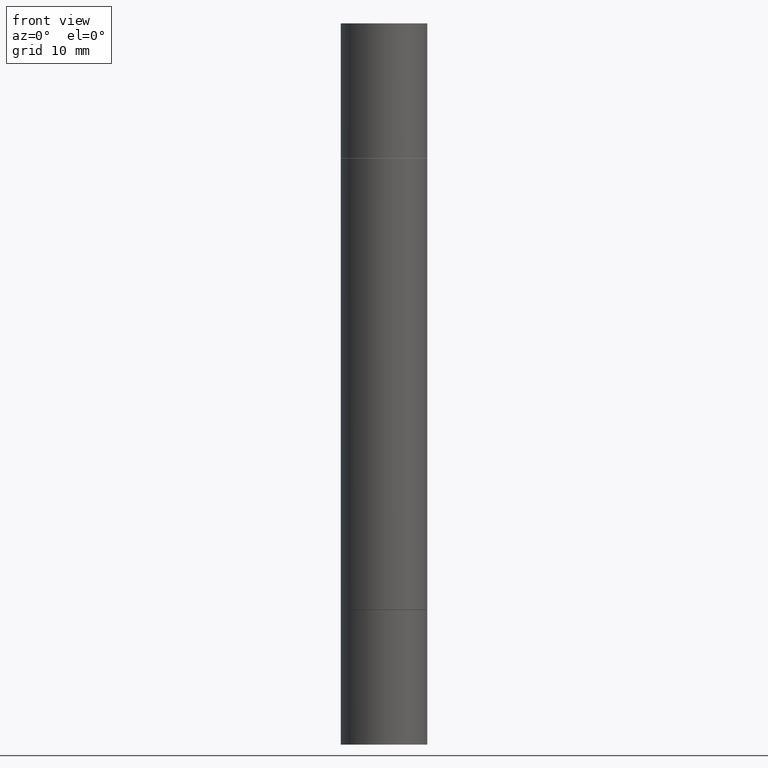
[diagram: clean part render]
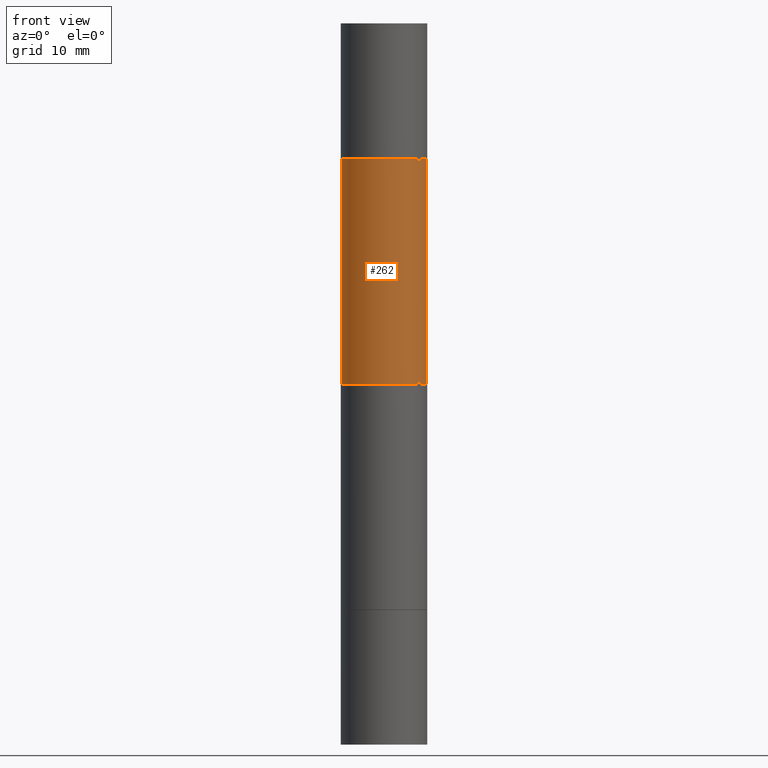
[diagram: same view with one face highlighted and labeled with its STEP entity id]
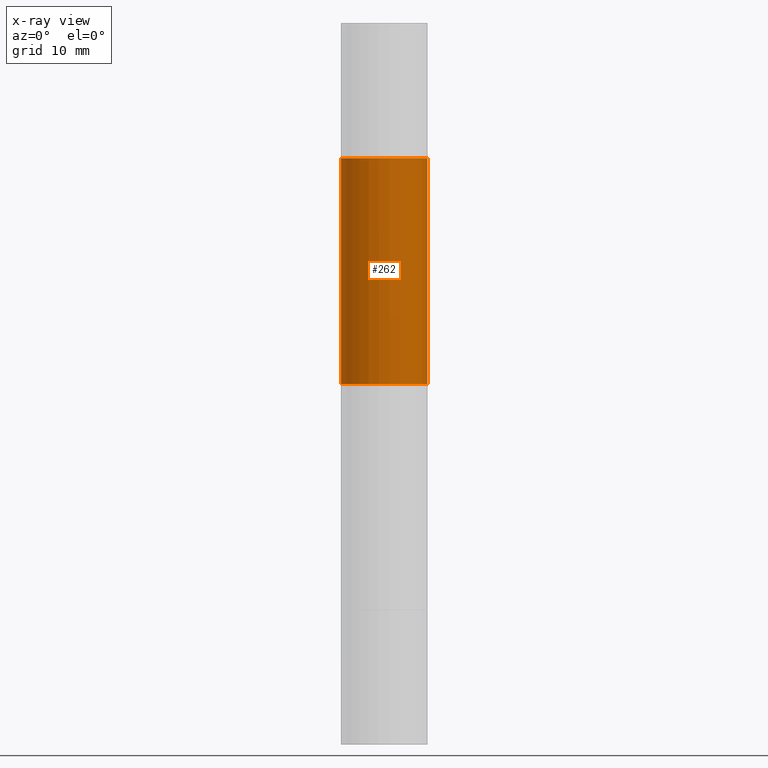
[diagram: x-ray of the same camera — body ghosted, the highlighted face saturated]
A machine part, front view. The second image highlights one B-rep face of the part: STEP entity #262.
The next image is the same camera in x-ray: the body ghosted, the highlighted face saturated — about 0% of this face is hidden behind the body in this view.
In plain terms, the highlighted cylindrical surface (partial cylindrical patch) has radius 4.4996 mm, axis along (-0, -0, -1).
Its self-contained STEP definition (entity closure, byte-faithful):
#18 = DIRECTION ( 'NONE',  ( -2.445468806185136877E-29, -3.492890411551753071E-15, -1.000000000000000000 ) ) ;
#29 = EDGE_CURVE ( 'NONE', #522, #220, #562, .T. ) ;
#32 = LINE ( 'NONE', #144, #251 ) ;
#51 = ORIENTED_EDGE ( 'NONE', *, *, #512, .T. ) ;
#105 = ORIENTED_EDGE ( 'NONE', *, *, #29, .F. ) ;
#119 = EDGE_LOOP ( 'NONE', ( #105, #51, #243, #207 ) ) ;
#141 = CYLINDRICAL_SURFACE ( 'NONE', #563, 0.1771499999999998354 ) ;
#144 = CARTESIAN_POINT ( 'NONE',  ( -0.1771499999999998354, -9.096389231977799348E-15, -2.952799999999998981 ) ) ;
#153 = EDGE_CURVE ( 'NONE', #220, #354, #460, .T. ) ;
#171 = DIRECTION ( 'NONE',  ( 1.000000000000000000, -6.982962677686268288E-15, 0.000000000000000000 ) ) ;
#207 = ORIENTED_EDGE ( 'NONE', *, *, #153, .F. ) ;
#220 = VERTEX_POINT ( 'NONE', #242 ) ;
#242 = CARTESIAN_POINT ( 'NONE',  ( 0.1771500000000000019, -3.163725568664010262E-15, -0.5521999999999996911 ) ) ;
#243 = ORIENTED_EDGE ( 'NONE', *, *, #485, .F. ) ;
#251 = VECTOR ( 'NONE', #18, 39.37007874015748143 ) ;
#262 = ADVANCED_FACE ( 'NONE', ( #612 ), #141, .T. ) ;
#264 = VECTOR ( 'NONE', #505, 39.37007874015748143 ) ;
#280 = CARTESIAN_POINT ( 'NONE',  ( 5.870592416128037625E-29, -1.926693730311889446E-15, -0.5521999999999996911 ) ) ;
#326 = CARTESIAN_POINT ( 'NONE',  ( 0.000000000000000000, -1.031172645228302408E-14, -2.952799999999998981 ) ) ;
#354 = VERTEX_POINT ( 'NONE', #639 ) ;
#363 = CARTESIAN_POINT ( 'NONE',  ( 0.1771499999999998354, -1.154875829063514490E-14, -2.952799999999998981 ) ) ;
#381 = VERTEX_POINT ( 'NONE', #517 ) ;
#387 = CARTESIAN_POINT ( 'NONE',  ( -0.1771500000000000019, -7.113565100066610661E-16, -0.5521999999999996911 ) ) ;
#409 = AXIS2_PLACEMENT_3D ( 'NONE', #280, #436, #492 ) ;
#436 = DIRECTION ( 'NONE',  ( 2.445468806185136597E-29, 3.492890411551752677E-15, 1.000000000000000000 ) ) ;
#460 = LINE ( 'NONE', #363, #264 ) ;
#463 = AXIS2_PLACEMENT_3D ( 'NONE', #614, #610, #665 ) ;
#473 = DIRECTION ( 'NONE',  ( -2.445468806185136597E-29, -3.492890411551752677E-15, -1.000000000000000000 ) ) ;
#485 = EDGE_CURVE ( 'NONE', #354, #381, #652, .T. ) ;
#492 = DIRECTION ( 'NONE',  ( 1.000000000000000000, -6.982962677686266711E-15, 0.000000000000000000 ) ) ;
#505 = DIRECTION ( 'NONE',  ( -2.445468806185136877E-29, -3.492890411551753071E-15, -1.000000000000000000 ) ) ;
#512 = EDGE_CURVE ( 'NONE', #522, #381, #32, .T. ) ;
#517 = CARTESIAN_POINT ( 'NONE',  ( -0.1771499999999998354, -2.325421169184726863E-15, -1.476399999999999491 ) ) ;
#522 = VERTEX_POINT ( 'NONE', #387 ) ;
#562 = CIRCLE ( 'NONE', #409, 0.1771500000000000019 ) ;
#563 = AXIS2_PLACEMENT_3D ( 'NONE', #326, #473, #171 ) ;
#610 = DIRECTION ( 'NONE',  ( -0.000000000000000000, -3.492185875197449130E-15, -1.000000000000000000 ) ) ;
#612 = FACE_OUTER_BOUND ( 'NONE', #119, .T. ) ;
#614 = CARTESIAN_POINT ( 'NONE',  ( 3.610490145451734531E-29, -5.154823048668018475E-15, -1.476399999999999491 ) ) ;
#639 = CARTESIAN_POINT ( 'NONE',  ( 0.1771499999999998354, -4.777790227842073988E-15, -1.476399999999999491 ) ) ;
#652 = CIRCLE ( 'NONE', #463, 0.1771499999999998354 ) ;
#665 = DIRECTION ( 'NONE',  ( 0.000000000000000000, 1.000000000000000000, -3.084220145260249380E-15 ) ) ;